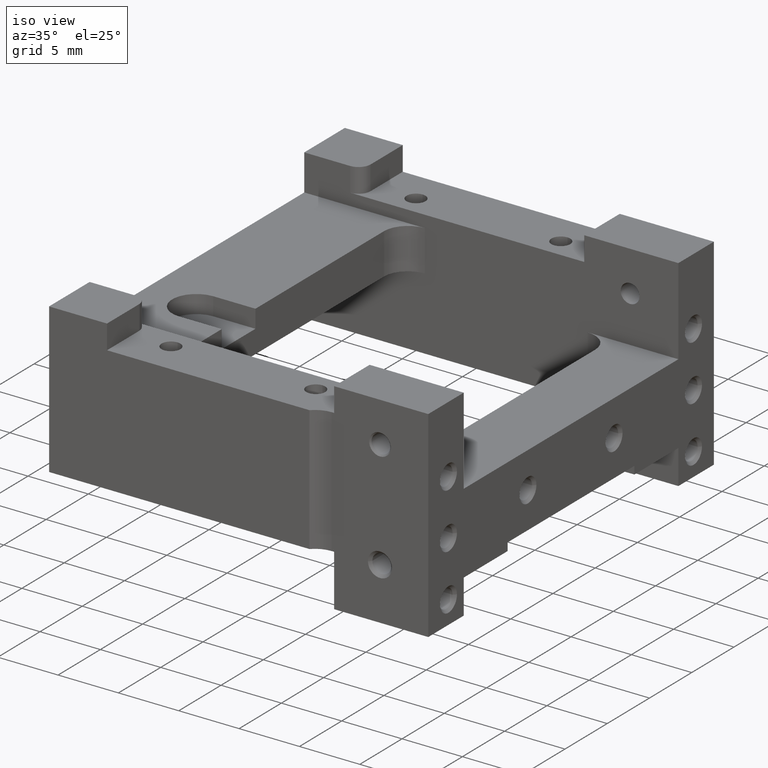
[diagram: clean part render]
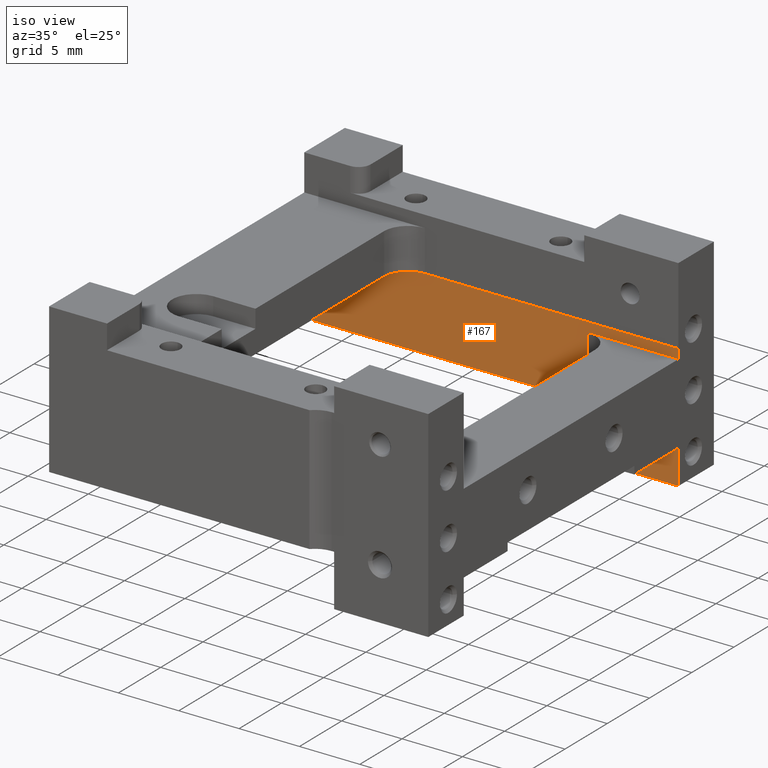
[diagram: same view with one face highlighted and labeled with its STEP entity id]
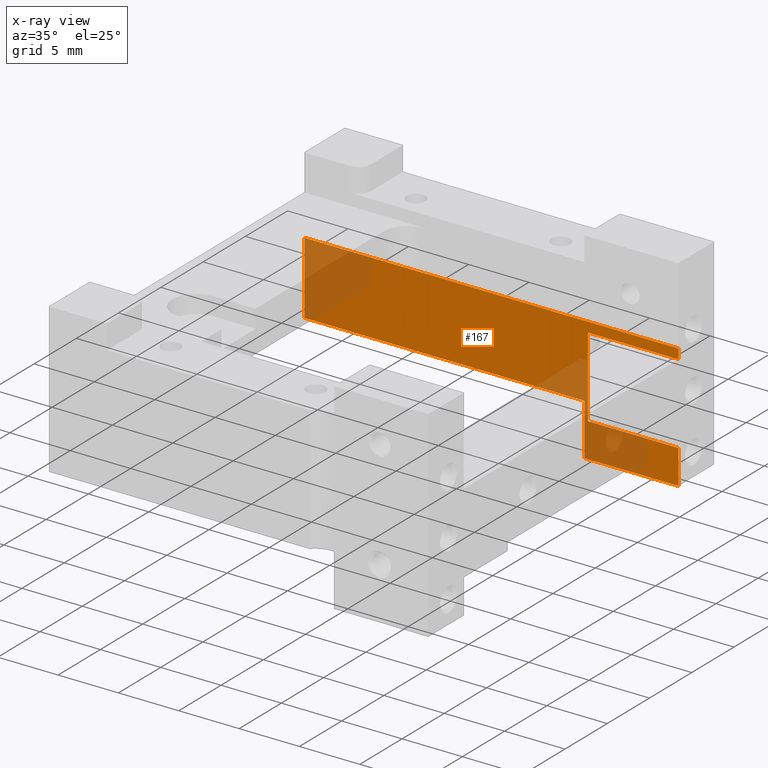
[diagram: x-ray of the same camera — body ghosted, the highlighted face saturated]
A machine part, iso view. The second image highlights one B-rep face of the part: STEP entity #167.
The next image is the same camera in x-ray: the body ghosted, the highlighted face saturated — about 27% of this face is hidden behind the body in this view.
In plain terms, the highlighted planar face has unit normal (0, -1, 0).
Its self-contained STEP definition (entity closure, byte-faithful):
#167=ADVANCED_FACE('',(#361),#1709,.T.);
#361=FACE_OUTER_BOUND('',#555,.F.);
#555=EDGE_LOOP('',(#802,#803,#804,#805,#806,#807,#808,#809,#810,#811,#812,
#813,#814,#815));
#802=ORIENTED_EDGE('',*,*,#2420,.T.);
#803=ORIENTED_EDGE('',*,*,#2399,.F.);
#804=ORIENTED_EDGE('',*,*,#2407,.T.);
#805=ORIENTED_EDGE('',*,*,#2408,.T.);
#806=ORIENTED_EDGE('',*,*,#2402,.F.);
#807=ORIENTED_EDGE('',*,*,#2404,.T.);
#808=ORIENTED_EDGE('',*,*,#2405,.T.);
#809=ORIENTED_EDGE('',*,*,#2417,.T.);
#810=ORIENTED_EDGE('',*,*,#2424,.T.);
#811=ORIENTED_EDGE('',*,*,#2418,.T.);
#812=ORIENTED_EDGE('',*,*,#2367,.F.);
#813=ORIENTED_EDGE('',*,*,#2366,.T.);
#814=ORIENTED_EDGE('',*,*,#2368,.F.);
#815=ORIENTED_EDGE('',*,*,#2419,.T.);
#1709=PLANE('',#3505);
#1799=LINE('',#5071,#2069);
#1800=LINE('',#5072,#2070);
#1801=LINE('',#5073,#2071);
#1831=LINE('',#5104,#2101);
#1834=LINE('',#5107,#2104);
#1836=LINE('',#5109,#2106);
#1837=LINE('',#5110,#2107);
#1839=LINE('',#5112,#2109);
#1840=LINE('',#5113,#2110);
#1848=LINE('',#5122,#2118);
#1849=LINE('',#5123,#2119);
#1850=LINE('',#5124,#2120);
#1851=LINE('',#5125,#2121);
#1855=LINE('',#5129,#2125);
#2069=VECTOR('',#3760,6.65000000000001);
#2070=VECTOR('',#3761,2.);
#2071=VECTOR('',#3762,2.);
#2101=VECTOR('',#3794,7.80000026128359);
#2104=VECTOR('',#3797,5.9999997315319);
#2106=VECTOR('',#3799,8.00000013636659);
#2107=VECTOR('',#3800,1.99999999999999);
#2109=VECTOR('',#3802,4.29891828333173);
#2110=VECTOR('',#3803,23.1999997387164);
#2118=VECTOR('',#3813,20.9999998636334);
#2119=VECTOR('',#3814,5.5);
#2120=VECTOR('',#3815,5.5);
#2121=VECTOR('',#3816,2.85000000388133);
#2125=VECTOR('',#3820,0.798918010982305);
#2366=EDGE_CURVE('',#3241,#3240,#1799,.T.);
#2367=EDGE_CURVE('',#3241,#3239,#1800,.T.);
#2368=EDGE_CURVE('',#3238,#3240,#1801,.T.);
#2399=EDGE_CURVE('',#3209,#3208,#1831,.T.);
#2402=EDGE_CURVE('',#3203,#3202,#1834,.T.);
#2404=EDGE_CURVE('',#3203,#3200,#1836,.T.);
#2405=EDGE_CURVE('',#3200,#3199,#1837,.T.);
#2407=EDGE_CURVE('',#3209,#3197,#1839,.T.);
#2408=EDGE_CURVE('',#3197,#3202,#1840,.T.);
#2417=EDGE_CURVE('',#3199,#3188,#1848,.T.);
#2418=EDGE_CURVE('',#3187,#3239,#1849,.T.);
#2419=EDGE_CURVE('',#3238,#3186,#1850,.T.);
#2420=EDGE_CURVE('',#3186,#3208,#1851,.T.);
#2424=EDGE_CURVE('',#3188,#3187,#1855,.T.);
#3186=VERTEX_POINT('',#4947);
#3187=VERTEX_POINT('',#4948);
#3188=VERTEX_POINT('',#4949);
#3197=VERTEX_POINT('',#4958);
#3199=VERTEX_POINT('',#4960);
#3200=VERTEX_POINT('',#4961);
#3202=VERTEX_POINT('',#4963);
#3203=VERTEX_POINT('',#4964);
#3208=VERTEX_POINT('',#4969);
#3209=VERTEX_POINT('',#4970);
#3238=VERTEX_POINT('',#4999);
#3239=VERTEX_POINT('',#5000);
#3240=VERTEX_POINT('',#5001);
#3241=VERTEX_POINT('',#5002);
#3505=AXIS2_PLACEMENT_3D('',#5507,#4366,#4367);
#3760=DIRECTION('',(0.,0.,-1.));
#3761=DIRECTION('',(1.,0.,0.));
#3762=DIRECTION('',(-1.,0.,0.));
#3794=DIRECTION('',(1.,0.,0.));
#3797=DIRECTION('',(0.,0.,-1.));
#3799=DIRECTION('',(1.,0.,0.));
#3800=DIRECTION('',(1.,0.,0.));
#3802=DIRECTION('',(0.,0.,1.));
#3803=DIRECTION('',(-1.,0.,0.));
#3813=DIRECTION('',(1.,0.,0.));
#3814=DIRECTION('',(-1.,0.,0.));
#3815=DIRECTION('',(1.,0.,0.));
#3816=DIRECTION('',(0.,0.,-1.));
#3820=DIRECTION('',(0.,0.,-1.));
#4366=DIRECTION('',(0.,-1.,0.));
#4367=DIRECTION('',(0.,0.,-1.));
#4947=CARTESIAN_POINT('',(-2.00000006141486,-47.3000000772086,-106.848918010983));
#4948=CARTESIAN_POINT('',(-2.00000006141486,-47.3000000772086,-100.198918010983));
#4949=CARTESIAN_POINT('',(-2.00000000001264,-47.2999999703549,-99.4000000000003));
#4958=CARTESIAN_POINT('',(-9.80000026129622,-47.3,-105.399999731532));
#4960=CARTESIAN_POINT('',(-22.9999998636461,-47.2999999555324,-99.4000000000003));
#4961=CARTESIAN_POINT('',(-24.9999998636461,-47.3,-99.4000000000003));
#4963=CARTESIAN_POINT('',(-33.0000000000126,-47.3,-105.399999731532));
#4964=CARTESIAN_POINT('',(-33.0000000000126,-47.3,-99.4000000000003));
#4969=CARTESIAN_POINT('',(-2.00000000001264,-47.3,-109.698918014864));
#4970=CARTESIAN_POINT('',(-9.80000026129622,-47.3,-109.698918014864));
#4999=CARTESIAN_POINT('',(-7.50000012281708,-47.3000001029448,-106.848918010983));
#5000=CARTESIAN_POINT('',(-7.50000012281709,-47.3000001029448,-100.198918010983));
#5001=CARTESIAN_POINT('',(-9.50000012281708,-47.3,-106.848918010983));
#5002=CARTESIAN_POINT('',(-9.50000012281708,-47.3,-100.198918010983));
#5071=CARTESIAN_POINT('',(-9.50000012281709,-47.3,-100.198918010983));
#5072=CARTESIAN_POINT('',(-9.50000012281709,-47.3,-100.198918010983));
#5073=CARTESIAN_POINT('',(-7.50000012281708,-47.3,-106.848918010983));
#5104=CARTESIAN_POINT('',(-9.80000026129623,-47.3,-109.698918014864));
#5107=CARTESIAN_POINT('',(-33.0000000000126,-47.3,-99.4000000000003));
#5109=CARTESIAN_POINT('',(-33.0000000000126,-47.3,-99.4000000000003));
#5110=CARTESIAN_POINT('',(-24.9999998636461,-47.3,-99.4000000000003));
#5112=CARTESIAN_POINT('',(-9.80000026129622,-47.3,-109.698918014864));
#5113=CARTESIAN_POINT('',(-9.80000026129622,-47.3,-105.399999731532));
#5122=CARTESIAN_POINT('',(-22.9999998636461,-47.3,-99.4000000000003));
#5123=CARTESIAN_POINT('',(-2.00000012281709,-47.3,-100.198918010983));
#5124=CARTESIAN_POINT('',(-7.50000012281708,-47.3,-106.848918010983));
#5125=CARTESIAN_POINT('',(-2.00000000001264,-47.3,-106.848918010983));
#5129=CARTESIAN_POINT('',(-2.00000000001264,-47.3,-99.4000000000003));
#5507=CARTESIAN_POINT('',(-33.3100000000126,-47.3,-99.0900000000003));